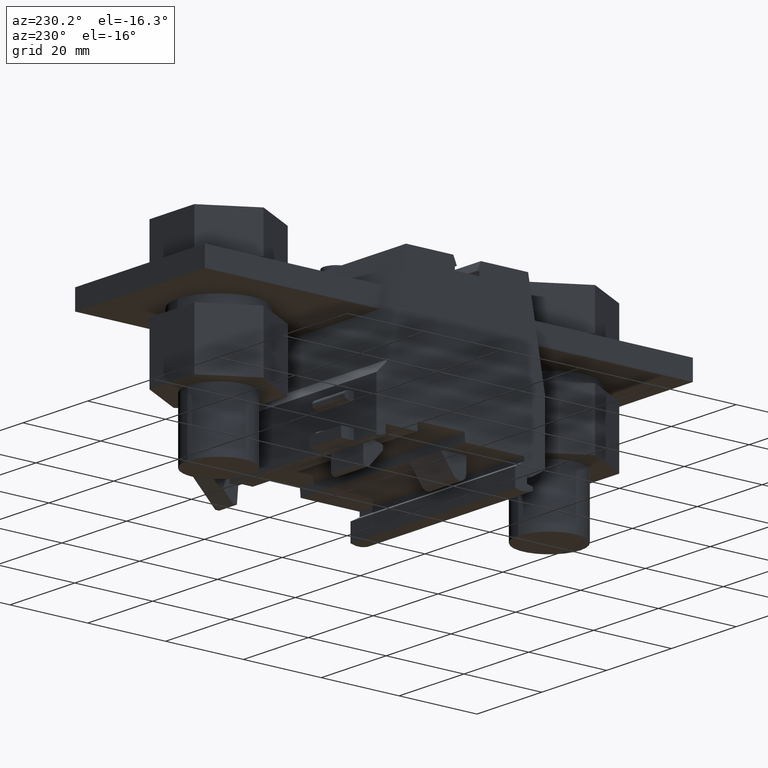
[diagram: clean part render]
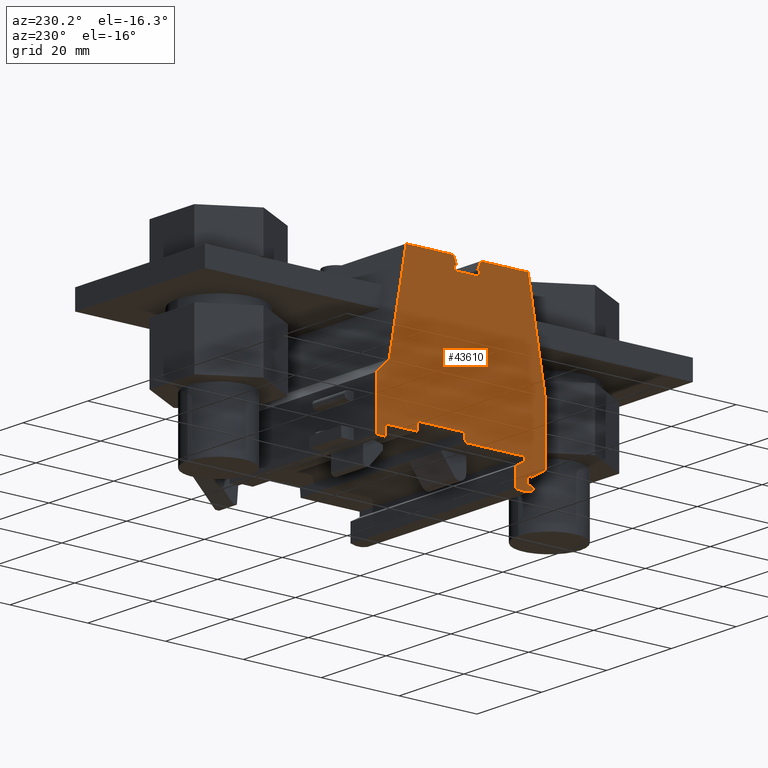
[diagram: same view with one face highlighted and labeled with its STEP entity id]
A machine part, auxiliary view. The second image highlights one B-rep face of the part: STEP entity #43610.
In plain terms, the highlighted planar face has unit normal (-1, 0, 0).
Its self-contained STEP definition (entity closure, byte-faithful):
#4300=CARTESIAN_POINT('',(0.,525.473551286024,-23.2));
#4310=DIRECTION('',(-0.707106781186557,0.707106781186538,0.));
#4320=VECTOR('',#4310,1.);
#4330=LINE('',#4300,#4320);
#4340=CARTESIAN_POINT('',(-217.307541587293,742.781092873311,-23.2));
#4350=VERTEX_POINT('',#4340);
#4360=CARTESIAN_POINT('',(-220.607541587293,746.081092873311,-23.2));
#4370=VERTEX_POINT('',#4360);
#4380=EDGE_CURVE('',#4350,#4370,#4330,.T.);
#5690=CARTESIAN_POINT('',(-564.277811862903,0.,-23.2));
#5700=DIRECTION('',(-0.390848743748333,-0.920454919868621,0.));
#5710=VECTOR('',#5700,1.);
#5720=LINE('',#5690,#5710);
#5730=CARTESIAN_POINT('',(-237.069335266635,770.581092873312,-23.2));
#5740=VERTEX_POINT('',#5730);
#5750=CARTESIAN_POINT('',(-237.969541587293,768.461092873311,-23.2));
#5760=VERTEX_POINT('',#5750);
#5770=EDGE_CURVE('',#5740,#5760,#5720,.T.);
#6070=CARTESIAN_POINT('',(-243.757541587293,0.,-23.2));
#6080=DIRECTION('',(0.,1.,0.));
#6090=VECTOR('',#6080,1.);
#6100=LINE('',#6070,#6090);
#6110=CARTESIAN_POINT('',(-243.757541587293,767.381092873311,-23.2));
#6120=VERTEX_POINT('',#6110);
#6130=CARTESIAN_POINT('',(-243.757541587293,768.461092873311,-23.2));
#6140=VERTEX_POINT('',#6130);
#6150=EDGE_CURVE('',#6120,#6140,#6100,.T.);
#6450=CARTESIAN_POINT('',(0.,768.461092873311,-23.2));
#6460=DIRECTION('',(-1.,0.,0.));
#6470=VECTOR('',#6460,1.);
#6480=LINE('',#6450,#6470);
#6490=CARTESIAN_POINT('',(-243.245541587294,768.461092873312,-23.2));
#6500=VERTEX_POINT('',#6490);
#6510=EDGE_CURVE('',#6500,#6140,#6480,.T.);
#17020=CARTESIAN_POINT('',(-256.287530559936,770.581092873311,-23.2));
#17030=VERTEX_POINT('',#17020);
#17060=CARTESIAN_POINT('',(0.,770.581092873311,-23.2));
#17070=DIRECTION('',(1.,0.,0.));
#17080=VECTOR('',#17070,1.);
#17090=LINE('',#17060,#17080);
#17100=CARTESIAN_POINT('',(-244.145747907952,770.581092873311,-23.2));
#17110=VERTEX_POINT('',#17100);
#17120=EDGE_CURVE('',#17030,#17110,#17090,.T.);
#18470=CARTESIAN_POINT('',(-255.307541587293,0.,-23.2));
#18480=DIRECTION('',(0.,1.,0.));
#18490=VECTOR('',#18480,1.);
#18500=LINE('',#18470,#18490);
#18510=CARTESIAN_POINT('',(-255.307541587293,731.43112790023,-23.2));
#18520=VERTEX_POINT('',#18510);
#18530=CARTESIAN_POINT('',(-255.307541587293,732.531092873311,-23.2));
#18540=VERTEX_POINT('',#18530);
#18550=EDGE_CURVE('',#18520,#18540,#18500,.T.);
#18890=CARTESIAN_POINT('',(-252.957541587293,730.074354767635,-23.2));
#18900=VERTEX_POINT('',#18890);
#18950=CARTESIAN_POINT('',(0.,584.029250038663,-23.2));
#18960=DIRECTION('',(-0.866025403784436,0.500000000000005,0.));
#18970=VECTOR('',#18960,1.);
#18980=LINE('',#18950,#18970);
#18990=EDGE_CURVE('',#18900,#18520,#18980,.T.);
#19200=CARTESIAN_POINT('',(-240.141267780721,732.531092873311,-23.2));
#19210=VERTEX_POINT('',#19200);
#19290=CARTESIAN_POINT('',(-239.957541587317,734.631092873311,-23.2));
#19300=VERTEX_POINT('',#19290);
#19330=CARTESIAN_POINT('',(-304.229434087378,0.,-23.2));
#19340=DIRECTION('',(0.0871557427476391,0.996194698091747,0.));
#19350=VECTOR('',#19340,1.);
#19360=LINE('',#19330,#19350);
#19370=EDGE_CURVE('',#19210,#19300,#19360,.T.);
#19540=CARTESIAN_POINT('',(-227.857541587293,0.,-23.2));
#19550=DIRECTION('',(0.,-1.,0.));
#19560=VECTOR('',#19550,1.);
#19570=LINE('',#19540,#19560);
#19580=CARTESIAN_POINT('',(-227.857541587293,734.631092873311,-23.2));
#19590=VERTEX_POINT('',#19580);
#19600=CARTESIAN_POINT('',(-227.857541587293,732.531092873311,-23.2));
#19610=VERTEX_POINT('',#19600);
#19620=EDGE_CURVE('',#19590,#19610,#19570,.T.);
#19920=CARTESIAN_POINT('',(0.,734.631092873311,-23.2));
#19930=DIRECTION('',(-1.,0.,0.));
#19940=VECTOR('',#19930,1.);
#19950=LINE('',#19920,#19940);
#19960=EDGE_CURVE('',#19590,#19300,#19950,.T.);
#20530=CARTESIAN_POINT('',(0.,732.531092873311,-23.2));
#20540=DIRECTION('',(1.,0.,0.));
#20550=VECTOR('',#20540,1.);
#20560=LINE('',#20530,#20550);
#20570=EDGE_CURVE('',#18540,#19210,#20560,.T.);
#22960=CARTESIAN_POINT('',(-217.307541587293,729.981092873311,-23.2));
#22970=VERTEX_POINT('',#22960);
#23000=CARTESIAN_POINT('',(0.,729.981092873311,-23.2));
#23010=DIRECTION('',(1.,0.,0.));
#23020=VECTOR('',#23010,1.);
#23030=LINE('',#23000,#23020);
#23040=CARTESIAN_POINT('',(-219.534447572153,729.981092873312,-23.2));
#23050=VERTEX_POINT('',#23040);
#23060=EDGE_CURVE('',#23050,#22970,#23030,.T.);
#23460=CARTESIAN_POINT('',(-219.753169230968,732.481092873311,-23.2));
#23470=DIRECTION('',(-0.0871557427476593,0.996194698091746,0.));
#23480=VECTOR('',#23470,1.);
#23490=LINE('',#23460,#23480);
#23500=CARTESIAN_POINT('',(-219.757543664145,732.531092873311,-23.2));
#23510=VERTEX_POINT('',#23500);
#23520=EDGE_CURVE('',#23050,#23510,#23490,.T.);
#25110=CARTESIAN_POINT('',(-217.307541587293,0.,-23.2));
#25120=DIRECTION('',(0.,1.,0.));
#25130=VECTOR('',#25120,1.);
#25140=LINE('',#25110,#25130);
#25150=EDGE_CURVE('',#22970,#4350,#25140,.T.);
#30130=CARTESIAN_POINT('',(0.,732.531092873311,-23.2));
#30140=DIRECTION('',(1.,0.,0.));
#30150=VECTOR('',#30140,1.);
#30160=LINE('',#30130,#30150);
#30170=EDGE_CURVE('',#19610,#23510,#30160,.T.);
#32980=CARTESIAN_POINT('',(-260.607541587293,746.081092873312,-23.2));
#32990=VERTEX_POINT('',#32980);
#33070=CARTESIAN_POINT('',(-260.607541587293,730.572951302016,-23.2));
#33080=VERTEX_POINT('',#33070);
#33110=CARTESIAN_POINT('',(-260.607541587293,0.,-23.2));
#33120=DIRECTION('',(0.,-1.,0.));
#33130=VECTOR('',#33120,1.);
#33140=LINE('',#33110,#33130);
#33150=EDGE_CURVE('',#32990,#33080,#33140,.T.);
#33380=CARTESIAN_POINT('',(-257.157541587294,728.581092873311,-23.2));
#33390=VERTEX_POINT('',#33380);
#33420=CARTESIAN_POINT('',(0.,580.111117013745,-23.2));
#33430=DIRECTION('',(0.866025403784438,-0.5,0.));
#33440=VECTOR('',#33430,1.);
#33450=LINE('',#33420,#33440);
#33460=EDGE_CURVE('',#33080,#33390,#33450,.T.);
#33630=CARTESIAN_POINT('',(83.062728688346,0.,-23.2));
#33640=DIRECTION('',(-0.390848743748363,0.920454919868609,0.));
#33650=VECTOR('',#33640,1.);
#33660=LINE('',#33630,#33650);
#33670=EDGE_CURVE('',#6500,#17110,#33660,.T.);
#33870=CARTESIAN_POINT('',(0.,768.461092873311,-23.2));
#33880=DIRECTION('',(1.,0.,0.));
#33890=VECTOR('',#33880,1.);
#33900=LINE('',#33870,#33890);
#33910=CARTESIAN_POINT('',(-237.457541587293,768.461092873311,-23.2));
#33920=VERTEX_POINT('',#33910);
#33930=EDGE_CURVE('',#5760,#33920,#33900,.T.);
#34180=CARTESIAN_POINT('',(-237.457541587293,0.,-23.2));
#34190=DIRECTION('',(0.,-1.,0.));
#34200=VECTOR('',#34190,1.);
#34210=LINE('',#34180,#34200);
#34220=CARTESIAN_POINT('',(-237.457541587293,767.381092873311,-23.2));
#34230=VERTEX_POINT('',#34220);
#34240=EDGE_CURVE('',#33920,#34230,#34210,.T.);
#34490=CARTESIAN_POINT('',(0.,767.381092873311,-23.2));
#34500=DIRECTION('',(1.,0.,0.));
#34510=VECTOR('',#34500,1.);
#34520=LINE('',#34490,#34510);
#34530=EDGE_CURVE('',#6120,#34230,#34520,.T.);
#35800=CARTESIAN_POINT('',(0.,770.581092873311,-23.2));
#35810=DIRECTION('',(1.,0.,0.));
#35820=VECTOR('',#35810,1.);
#35830=LINE('',#35800,#35820);
#35840=CARTESIAN_POINT('',(-224.927552614651,770.581092873311,-23.2));
#35850=VERTEX_POINT('',#35840);
#35860=EDGE_CURVE('',#5740,#35850,#35830,.T.);
#36270=CARTESIAN_POINT('',(-89.0533151172704,0.,-23.2));
#36280=DIRECTION('',(-0.17364817766693,0.984807753012208,0.));
#36290=VECTOR('',#36280,1.);
#36300=LINE('',#36270,#36290);
#36310=EDGE_CURVE('',#4370,#35850,#36300,.T.);
#42770=CARTESIAN_POINT('',(-240.407569230926,734.404508305049,-23.2));
#42780=DIRECTION('',(0.,0.,-1.));
#42790=DIRECTION('',(-1.,0.,0.));
#42800=AXIS2_PLACEMENT_3D('',#42770,#42780,#42790);
#42810=PLANE('',#42800);
#42820=ORIENTED_EDGE('',*,*,#33150,.F.);
#42830=ORIENTED_EDGE('',*,*,#33460,.F.);
#42840=CARTESIAN_POINT('',(0.,728.581092873311,-23.2));
#42850=DIRECTION('',(1.,0.,0.));
#42860=VECTOR('',#42850,1.);
#42870=LINE('',#42840,#42860);
#42880=CARTESIAN_POINT('',(-256.007569230968,728.581092873311,-23.2));
#42890=VERTEX_POINT('',#42880);
#42900=EDGE_CURVE('',#33390,#42890,#42870,.T.);
#42910=ORIENTED_EDGE('',*,*,#42900,.F.);
#42920=CARTESIAN_POINT('',(-256.007569230968,728.581092873311,-23.2));
#42930=DIRECTION('',(0.,-1.,0.));
#42940=VECTOR('',#42930,1.);
#42950=LINE('',#42920,#42940);
#42960=CARTESIAN_POINT('',(-256.007569230968,726.931092873311,-23.2));
#42970=VERTEX_POINT('',#42960);
#42980=EDGE_CURVE('',#42890,#42970,#42950,.T.);
#42990=ORIENTED_EDGE('',*,*,#42980,.F.);
#43000=CARTESIAN_POINT('',(-255.007569230968,727.10741985402,-23.2));
#43010=DIRECTION('',(-0.984807753012207,-0.173648177666938,0.));
#43020=VECTOR('',#43010,1.);
#43030=LINE('',#43000,#43020);
#43040=CARTESIAN_POINT('',(-257.28475435565,726.705890676471,-23.2));
#43050=VERTEX_POINT('',#43040);
#43060=EDGE_CURVE('',#42970,#43050,#43030,.T.);
#43070=ORIENTED_EDGE('',*,*,#43060,.F.);
#43080=CARTESIAN_POINT('',(-256.924265528245,726.185197498871,-23.2));
#43090=DIRECTION('',(0.,0.,-1.));
#43100=DIRECTION('',(-1.,0.,0.));
#43110=AXIS2_PLACEMENT_3D('',#43080,#43090,#43100);
#43120=CIRCLE('',#43110,0.63330370272275);
#43130=CARTESIAN_POINT('',(-257.238863016521,725.635559435912,-23.2));
#43140=VERTEX_POINT('',#43130);
#43150=EDGE_CURVE('',#43140,#43050,#43120,.T.);
#43160=ORIENTED_EDGE('',*,*,#43150,.T.);
#43170=CARTESIAN_POINT('',(-255.007569230968,732.481092873311,-23.2));
#43180=DIRECTION('',(0.,0.,-1.));
#43190=DIRECTION('',(-1.,0.,0.));
#43200=AXIS2_PLACEMENT_3D('',#43170,#43180,#43190);
#43210=CIRCLE('',#43200,7.20000000000001);
#43220=CARTESIAN_POINT('',(-252.957541587293,725.579108618029,-23.2));
#43230=VERTEX_POINT('',#43220);
#43240=EDGE_CURVE('',#43230,#43140,#43210,.T.);
#43250=ORIENTED_EDGE('',*,*,#43240,.T.);
#43260=CARTESIAN_POINT('',(-252.957541587293,0.,-23.2));
#43270=DIRECTION('',(0.,1.,0.));
#43280=VECTOR('',#43270,1.);
#43290=LINE('',#43260,#43280);
#43300=EDGE_CURVE('',#43230,#18900,#43290,.T.);
#43310=ORIENTED_EDGE('',*,*,#43300,.F.);
#43320=ORIENTED_EDGE('',*,*,#18990,.F.);
#43330=ORIENTED_EDGE('',*,*,#18550,.F.);
#43340=ORIENTED_EDGE('',*,*,#20570,.F.);
#43350=ORIENTED_EDGE('',*,*,#19370,.F.);
#43360=ORIENTED_EDGE('',*,*,#19960,.T.);
#43370=ORIENTED_EDGE('',*,*,#19620,.F.);
#43380=ORIENTED_EDGE('',*,*,#30170,.F.);
#43390=ORIENTED_EDGE('',*,*,#23520,.T.);
#43400=ORIENTED_EDGE('',*,*,#23060,.F.);
#43410=ORIENTED_EDGE('',*,*,#25150,.F.);
#43420=ORIENTED_EDGE('',*,*,#4380,.F.);
#43430=ORIENTED_EDGE('',*,*,#36310,.F.);
#43440=ORIENTED_EDGE('',*,*,#35860,.T.);
#43450=ORIENTED_EDGE('',*,*,#5770,.F.);
#43460=ORIENTED_EDGE('',*,*,#33930,.F.);
#43470=ORIENTED_EDGE('',*,*,#34240,.F.);
#43480=ORIENTED_EDGE('',*,*,#34530,.T.);
#43490=ORIENTED_EDGE('',*,*,#6150,.F.);
#43500=ORIENTED_EDGE('',*,*,#6510,.T.);
#43510=ORIENTED_EDGE('',*,*,#33670,.F.);
#43520=ORIENTED_EDGE('',*,*,#17120,.T.);
#43530=CARTESIAN_POINT('',(-392.161768057316,0.,-23.2));
#43540=DIRECTION('',(-0.17364817766693,-0.984807753012208,0.));
#43550=VECTOR('',#43540,1.);
#43560=LINE('',#43530,#43550);
#43570=EDGE_CURVE('',#17030,#32990,#43560,.T.);
#43580=ORIENTED_EDGE('',*,*,#43570,.F.);
#43590=EDGE_LOOP('',(#43580,#43520,#43510,#43500,#43490,#43480,#43470,
#43460,#43450,#43440,#43430,#43420,#43410,#43400,#43390,#43380,#43370,
#43360,#43350,#43340,#43330,#43320,#43310,#43250,#43160,#43070,#42990,
#42910,#42830,#42820));
#43600=FACE_OUTER_BOUND('',#43590,.T.);
#43610=ADVANCED_FACE('',(#43600),#42810,.T.);